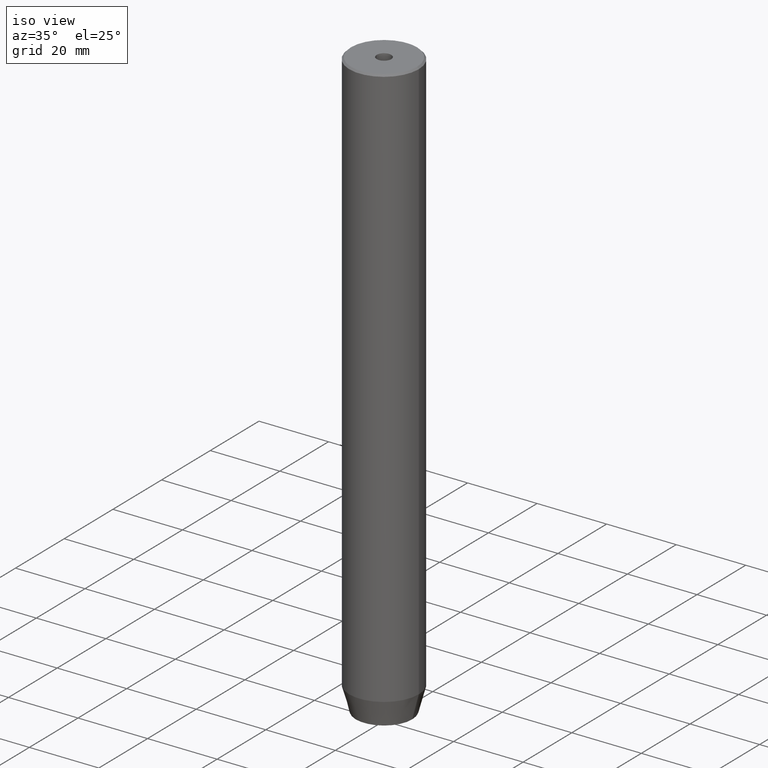
[diagram: clean part render]
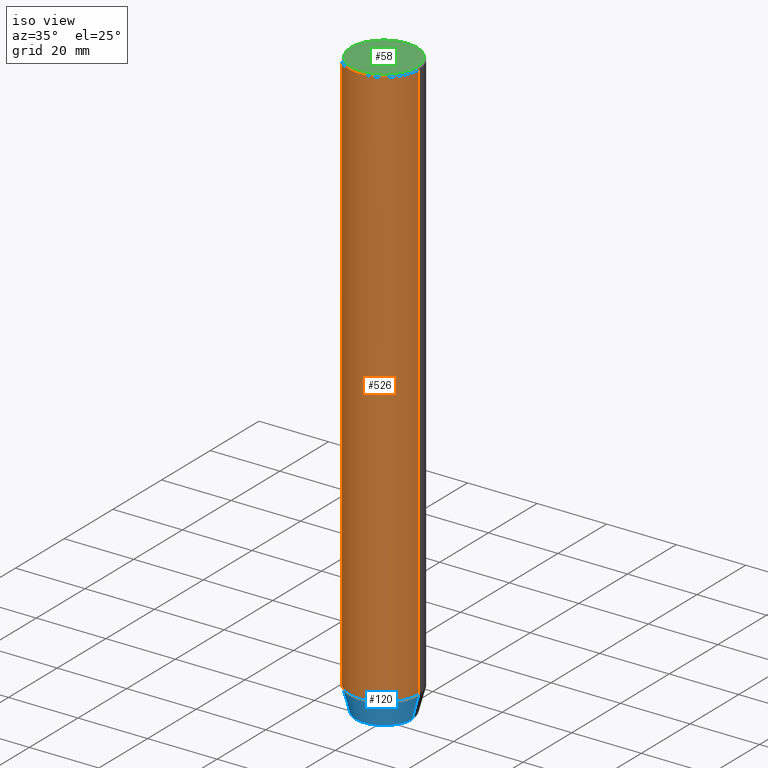
[diagram: same view with three faces highlighted in distinct colors, each labeled with its STEP entity id]
A machine part, iso view with three faces highlighted in distinct colors.
Their STEP definitions:

[orange] entity #526 — the highlighted cylindrical surface (partial cylindrical patch) has radius 10 mm, axis along (-0, -0, 1).
#46 = ORIENTED_EDGE ( 'NONE', *, *, #425, .T. ) ;
#67 = AXIS2_PLACEMENT_3D ( 'NONE', #340, #249, #293 ) ;
#88 = LINE ( 'NONE', #504, #170 ) ;
#139 = CARTESIAN_POINT ( 'NONE',  ( 10.00000000000000000, 0.000000000000000000, -0.4999999999999987232 ) ) ;
#150 = LINE ( 'NONE', #476, #194 ) ;
#164 = DIRECTION ( 'NONE',  ( -0.000000000000000000, -0.000000000000000000, 1.000000000000000000 ) ) ;
#170 = VECTOR ( 'NONE', #359, 1000.000000000000000 ) ;
#178 = EDGE_CURVE ( 'NONE', #481, #275, #88, .T. ) ;
#182 = CIRCLE ( 'NONE', #261, 10.00000000000000000 ) ;
#194 = VECTOR ( 'NONE', #211, 1000.000000000000000 ) ;
#211 = DIRECTION ( 'NONE',  ( -0.000000000000000000, -0.000000000000000000, 1.000000000000000000 ) ) ;
#213 = FACE_OUTER_BOUND ( 'NONE', #408, .T. ) ;
#245 = ORIENTED_EDGE ( 'NONE', *, *, #178, .F. ) ;
#248 = VERTEX_POINT ( 'NONE', #139 ) ;
#249 = DIRECTION ( 'NONE',  ( -0.000000000000000000, -0.000000000000000000, 1.000000000000000000 ) ) ;
#253 = AXIS2_PLACEMENT_3D ( 'NONE', #301, #164, #395 ) ;
#255 = VERTEX_POINT ( 'NONE', #417 ) ;
#261 = AXIS2_PLACEMENT_3D ( 'NONE', #328, #426, #382 ) ;
#275 = VERTEX_POINT ( 'NONE', #283 ) ;
#283 = CARTESIAN_POINT ( 'NONE',  ( -10.00000000000000000, 1.224646799147353256E-15, -0.4999999999999987232 ) ) ;
#293 = DIRECTION ( 'NONE',  ( 1.000000000000000000, 0.000000000000000000, 0.000000000000000000 ) ) ;
#301 = CARTESIAN_POINT ( 'NONE',  ( 0.000000000000000000, 0.000000000000000000, 0.000000000000000000 ) ) ;
#320 = CIRCLE ( 'NONE', #67, 10.00000000000000000 ) ;
#328 = CARTESIAN_POINT ( 'NONE',  ( 0.000000000000000000, 0.000000000000000000, -0.4999999999999987232 ) ) ;
#340 = CARTESIAN_POINT ( 'NONE',  ( 0.000000000000000000, 0.000000000000000000, -162.9999999999999716 ) ) ;
#348 = CARTESIAN_POINT ( 'NONE',  ( -10.00000000000000000, 1.224646799147353256E-15, -162.9999999999999716 ) ) ;
#351 = EDGE_CURVE ( 'NONE', #481, #255, #320, .T. ) ;
#359 = DIRECTION ( 'NONE',  ( -0.000000000000000000, -0.000000000000000000, 1.000000000000000000 ) ) ;
#378 = EDGE_CURVE ( 'NONE', #255, #248, #150, .T. ) ;
#380 = ORIENTED_EDGE ( 'NONE', *, *, #351, .T. ) ;
#382 = DIRECTION ( 'NONE',  ( 1.000000000000000000, 0.000000000000000000, 0.000000000000000000 ) ) ;
#395 = DIRECTION ( 'NONE',  ( 1.000000000000000000, 0.000000000000000000, 0.000000000000000000 ) ) ;
#408 = EDGE_LOOP ( 'NONE', ( #245, #380, #421, #46 ) ) ;
#417 = CARTESIAN_POINT ( 'NONE',  ( 10.00000000000000000, 0.000000000000000000, -162.9999999999999716 ) ) ;
#421 = ORIENTED_EDGE ( 'NONE', *, *, #378, .T. ) ;
#425 = EDGE_CURVE ( 'NONE', #248, #275, #182, .T. ) ;
#426 = DIRECTION ( 'NONE',  ( 0.000000000000000000, 0.000000000000000000, -1.000000000000000000 ) ) ;
#476 = CARTESIAN_POINT ( 'NONE',  ( 10.00000000000000000, 0.000000000000000000, 0.000000000000000000 ) ) ;
#481 = VERTEX_POINT ( 'NONE', #348 ) ;
#492 = CYLINDRICAL_SURFACE ( 'NONE', #253, 10.00000000000000000 ) ;
#504 = CARTESIAN_POINT ( 'NONE',  ( -10.00000000000000000, 1.224646799147353256E-15, 0.000000000000000000 ) ) ;
#526 = ADVANCED_FACE ( 'NONE', ( #213 ), #492, .T. ) ;

[blue] entity #120 — the highlighted conical surface has half-angle 15 deg.
#10 = ORIENTED_EDGE ( 'NONE', *, *, #431, .T. ) ;
#11 = DIRECTION ( 'NONE',  ( -0.000000000000000000, -0.000000000000000000, 1.000000000000000000 ) ) ;
#67 = AXIS2_PLACEMENT_3D ( 'NONE', #340, #249, #293 ) ;
#73 = CONICAL_SURFACE ( 'NONE', #193, 10.00000000000000000, 0.2617993877991499629 ) ;
#108 = AXIS2_PLACEMENT_3D ( 'NONE', #512, #11, #467 ) ;
#120 = ADVANCED_FACE ( 'NONE', ( #409 ), #73, .T. ) ;
#126 = CARTESIAN_POINT ( 'NONE',  ( 10.00000000000000000, 0.000000000000000000, -162.9999999999999716 ) ) ;
#132 = VECTOR ( 'NONE', #300, 1000.000000000000114 ) ;
#146 = CARTESIAN_POINT ( 'NONE',  ( -8.124355652982128362, 1.109796706851640162E-15, -170.0000000000000000 ) ) ;
#159 = EDGE_CURVE ( 'NONE', #168, #481, #180, .T. ) ;
#168 = VERTEX_POINT ( 'NONE', #146 ) ;
#180 = LINE ( 'NONE', #542, #343 ) ;
#193 = AXIS2_PLACEMENT_3D ( 'NONE', #415, #576, #549 ) ;
#206 = ORIENTED_EDGE ( 'NONE', *, *, #351, .F. ) ;
#246 = CARTESIAN_POINT ( 'NONE',  ( 8.124355652982128362, 0.000000000000000000, -170.0000000000000000 ) ) ;
#249 = DIRECTION ( 'NONE',  ( -0.000000000000000000, -0.000000000000000000, 1.000000000000000000 ) ) ;
#255 = VERTEX_POINT ( 'NONE', #417 ) ;
#293 = DIRECTION ( 'NONE',  ( 1.000000000000000000, 0.000000000000000000, 0.000000000000000000 ) ) ;
#300 = DIRECTION ( 'NONE',  ( 0.2588190451025212391, 0.000000000000000000, 0.9659258262890680902 ) ) ;
#307 = LINE ( 'NONE', #126, #132 ) ;
#315 = VERTEX_POINT ( 'NONE', #246 ) ;
#320 = CIRCLE ( 'NONE', #67, 10.00000000000000000 ) ;
#340 = CARTESIAN_POINT ( 'NONE',  ( 0.000000000000000000, 0.000000000000000000, -162.9999999999999716 ) ) ;
#343 = VECTOR ( 'NONE', #465, 1000.000000000000114 ) ;
#348 = CARTESIAN_POINT ( 'NONE',  ( -10.00000000000000000, 1.224646799147353256E-15, -162.9999999999999716 ) ) ;
#351 = EDGE_CURVE ( 'NONE', #481, #255, #320, .T. ) ;
#397 = ORIENTED_EDGE ( 'NONE', *, *, #159, .F. ) ;
#409 = FACE_OUTER_BOUND ( 'NONE', #494, .T. ) ;
#415 = CARTESIAN_POINT ( 'NONE',  ( 0.000000000000000000, 0.000000000000000000, -162.9999999999999716 ) ) ;
#417 = CARTESIAN_POINT ( 'NONE',  ( 10.00000000000000000, 0.000000000000000000, -162.9999999999999716 ) ) ;
#431 = EDGE_CURVE ( 'NONE', #168, #315, #437, .T. ) ;
#437 = CIRCLE ( 'NONE', #108, 8.124355652982128362 ) ;
#457 = EDGE_CURVE ( 'NONE', #315, #255, #307, .T. ) ;
#465 = DIRECTION ( 'NONE',  ( -0.2588190451025212391, 3.169619151431771721E-17, 0.9659258262890680902 ) ) ;
#467 = DIRECTION ( 'NONE',  ( 1.000000000000000000, 0.000000000000000000, 0.000000000000000000 ) ) ;
#474 = ORIENTED_EDGE ( 'NONE', *, *, #457, .T. ) ;
#481 = VERTEX_POINT ( 'NONE', #348 ) ;
#494 = EDGE_LOOP ( 'NONE', ( #397, #10, #474, #206 ) ) ;
#512 = CARTESIAN_POINT ( 'NONE',  ( 0.000000000000000000, 0.000000000000000000, -170.0000000000000000 ) ) ;
#542 = CARTESIAN_POINT ( 'NONE',  ( -10.00000000000000000, 1.224646799147353256E-15, -162.9999999999999716 ) ) ;
#549 = DIRECTION ( 'NONE',  ( 1.000000000000000000, 0.000000000000000000, 0.000000000000000000 ) ) ;
#576 = DIRECTION ( 'NONE',  ( -0.000000000000000000, -0.000000000000000000, 1.000000000000000000 ) ) ;

[green] entity #58 — the highlighted planar face has unit normal (0, -0, 1).
#1 = AXIS2_PLACEMENT_3D ( 'NONE', #403, #184, #138 ) ;
#9 = VERTEX_POINT ( 'NONE', #70 ) ;
#25 = AXIS2_PLACEMENT_3D ( 'NONE', #185, #362, #462 ) ;
#40 = FACE_BOUND ( 'NONE', #84, .T. ) ;
#50 = CARTESIAN_POINT ( 'NONE',  ( -9.499999999999980460, 0.000000000000000000, 0.000000000000000000 ) ) ;
#58 = ADVANCED_FACE ( 'NONE', ( #40, #452 ), #190, .T. ) ;
#70 = CARTESIAN_POINT ( 'NONE',  ( -2.099999999999998757, 2.571758278209440478E-16, -1.990051048614449116E-16 ) ) ;
#84 = EDGE_LOOP ( 'NONE', ( #136, #266 ) ) ;
#100 = DIRECTION ( 'NONE',  ( 1.000000000000000000, 0.000000000000000000, 0.000000000000000000 ) ) ;
#107 = VERTEX_POINT ( 'NONE', #50 ) ;
#115 = AXIS2_PLACEMENT_3D ( 'NONE', #199, #517, #243 ) ;
#136 = ORIENTED_EDGE ( 'NONE', *, *, #250, .F. ) ;
#138 = DIRECTION ( 'NONE',  ( 1.000000000000000000, 0.000000000000000000, 0.000000000000000000 ) ) ;
#142 = CARTESIAN_POINT ( 'NONE',  ( 9.499999999999980460, 1.194030629168668286E-15, 0.000000000000000000 ) ) ;
#166 = VERTEX_POINT ( 'NONE', #142 ) ;
#171 = AXIS2_PLACEMENT_3D ( 'NONE', #299, #205, #286 ) ;
#184 = DIRECTION ( 'NONE',  ( 0.000000000000000000, -0.000000000000000000, 1.000000000000000000 ) ) ;
#185 = CARTESIAN_POINT ( 'NONE',  ( 0.000000000000000000, 0.000000000000000000, -1.990051048614449116E-16 ) ) ;
#190 = PLANE ( 'NONE',  #1 ) ;
#192 = DIRECTION ( 'NONE',  ( -0.000000000000000000, -0.000000000000000000, 1.000000000000000000 ) ) ;
#199 = CARTESIAN_POINT ( 'NONE',  ( 0.000000000000000000, 0.000000000000000000, 0.000000000000000000 ) ) ;
#202 = VERTEX_POINT ( 'NONE', #500 ) ;
#204 = CIRCLE ( 'NONE', #171, 9.499999999999980460 ) ;
#205 = DIRECTION ( 'NONE',  ( -0.000000000000000000, -0.000000000000000000, 1.000000000000000000 ) ) ;
#234 = CARTESIAN_POINT ( 'NONE',  ( 0.000000000000000000, 0.000000000000000000, -1.990051048614449116E-16 ) ) ;
#240 = AXIS2_PLACEMENT_3D ( 'NONE', #234, #192, #100 ) ;
#243 = DIRECTION ( 'NONE',  ( 1.000000000000000000, 0.000000000000000000, 0.000000000000000000 ) ) ;
#250 = EDGE_CURVE ( 'NONE', #202, #9, #469, .T. ) ;
#259 = CIRCLE ( 'NONE', #240, 2.099999999999998757 ) ;
#266 = ORIENTED_EDGE ( 'NONE', *, *, #272, .F. ) ;
#272 = EDGE_CURVE ( 'NONE', #9, #202, #259, .T. ) ;
#286 = DIRECTION ( 'NONE',  ( 1.000000000000000000, 0.000000000000000000, 0.000000000000000000 ) ) ;
#297 = ORIENTED_EDGE ( 'NONE', *, *, #327, .T. ) ;
#299 = CARTESIAN_POINT ( 'NONE',  ( 0.000000000000000000, 0.000000000000000000, 0.000000000000000000 ) ) ;
#312 = EDGE_LOOP ( 'NONE', ( #372, #297 ) ) ;
#327 = EDGE_CURVE ( 'NONE', #166, #107, #204, .T. ) ;
#332 = EDGE_CURVE ( 'NONE', #107, #166, #490, .T. ) ;
#362 = DIRECTION ( 'NONE',  ( -0.000000000000000000, -0.000000000000000000, 1.000000000000000000 ) ) ;
#372 = ORIENTED_EDGE ( 'NONE', *, *, #332, .T. ) ;
#403 = CARTESIAN_POINT ( 'NONE',  ( 0.000000000000000000, 0.000000000000000000, 0.000000000000000000 ) ) ;
#452 = FACE_OUTER_BOUND ( 'NONE', #312, .T. ) ;
#462 = DIRECTION ( 'NONE',  ( 1.000000000000000000, 0.000000000000000000, 0.000000000000000000 ) ) ;
#469 = CIRCLE ( 'NONE', #25, 2.099999999999998757 ) ;
#490 = CIRCLE ( 'NONE', #115, 9.499999999999980460 ) ;
#500 = CARTESIAN_POINT ( 'NONE',  ( 2.099999999999998757, 0.000000000000000000, -1.990051048614449116E-16 ) ) ;
#517 = DIRECTION ( 'NONE',  ( -0.000000000000000000, -0.000000000000000000, 1.000000000000000000 ) ) ;